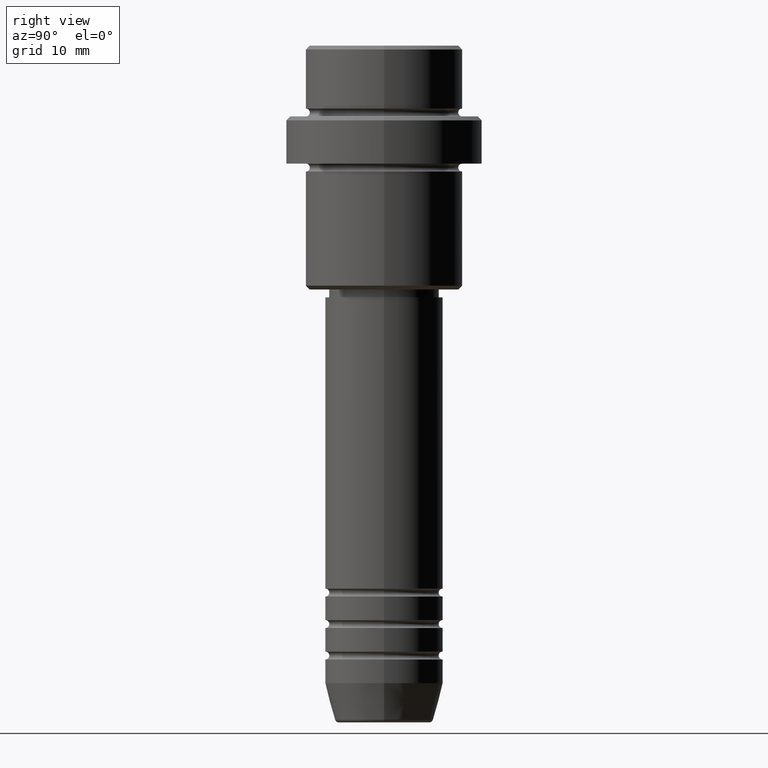
[diagram: clean part render]
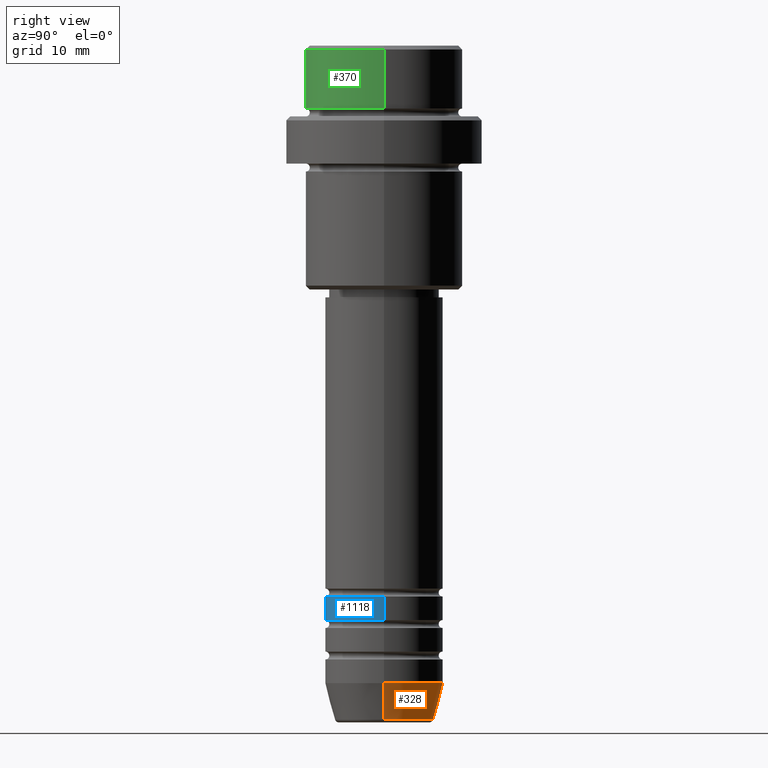
[diagram: same view with three faces highlighted in distinct colors, each labeled with its STEP entity id]
A machine part, right view with three faces highlighted in distinct colors.
Their STEP definitions:

[orange] entity #328 — the highlighted conical surface has half-angle 15 deg.
#17 = FACE_OUTER_BOUND ( 'NONE', #359, .T. ) ;
#29 = DIRECTION ( 'NONE',  ( 1.000000000000000000, 0.000000000000000000, 0.000000000000000000 ) ) ;
#90 = CIRCLE ( 'NONE', #1261, 7.500000000000000000 ) ;
#121 = VERTEX_POINT ( 'NONE', #997 ) ;
#144 = DIRECTION ( 'NONE',  ( -0.000000000000000000, -0.000000000000000000, 1.000000000000000000 ) ) ;
#169 = EDGE_CURVE ( 'NONE', #358, #606, #1356, .T. ) ;
#255 = DIRECTION ( 'NONE',  ( -0.000000000000000000, -0.000000000000000000, 1.000000000000000000 ) ) ;
#298 = CARTESIAN_POINT ( 'NONE',  ( 6.259553456999438659, 0.000000000000000000, -85.62940952255125637 ) ) ;
#313 = VECTOR ( 'NONE', #702, 1000.000000000000000 ) ;
#328 = ADVANCED_FACE ( 'NONE', ( #17 ), #1257, .T. ) ;
#329 = CARTESIAN_POINT ( 'NONE',  ( -7.500000000000000000, 9.184850993605147944E-16, -81.00000000000000000 ) ) ;
#334 = EDGE_CURVE ( 'NONE', #121, #705, #483, .T. ) ;
#348 = DIRECTION ( 'NONE',  ( 1.000000000000000000, 0.000000000000000000, 0.000000000000000000 ) ) ;
#358 = VERTEX_POINT ( 'NONE', #298 ) ;
#359 = EDGE_LOOP ( 'NONE', ( #775, #1226, #440, #851 ) ) ;
#430 = AXIS2_PLACEMENT_3D ( 'NONE', #911, #255, #29 ) ;
#440 = ORIENTED_EDGE ( 'NONE', *, *, #833, .F. ) ;
#483 = LINE ( 'NONE', #725, #313 ) ;
#543 = CIRCLE ( 'NONE', #430, 6.259553456999438659 ) ;
#597 = CARTESIAN_POINT ( 'NONE',  ( 7.500000000000000000, 0.000000000000000000, -81.00000000000000000 ) ) ;
#606 = VERTEX_POINT ( 'NONE', #1061 ) ;
#633 = AXIS2_PLACEMENT_3D ( 'NONE', #1332, #144, #348 ) ;
#691 = DIRECTION ( 'NONE',  ( 1.000000000000000000, 0.000000000000000000, 0.000000000000000000 ) ) ;
#702 = DIRECTION ( 'NONE',  ( -0.2588190451025213501, 3.169619151431772337E-17, 0.9659258262890680902 ) ) ;
#705 = VERTEX_POINT ( 'NONE', #329 ) ;
#725 = CARTESIAN_POINT ( 'NONE',  ( -7.500000000000000000, 9.184850993605147944E-16, -81.00000000000000000 ) ) ;
#735 = VECTOR ( 'NONE', #1144, 1000.000000000000000 ) ;
#775 = ORIENTED_EDGE ( 'NONE', *, *, #935, .T. ) ;
#833 = EDGE_CURVE ( 'NONE', #606, #705, #90, .T. ) ;
#851 = ORIENTED_EDGE ( 'NONE', *, *, #169, .F. ) ;
#911 = CARTESIAN_POINT ( 'NONE',  ( 0.000000000000000000, 0.000000000000000000, -85.62940952255125637 ) ) ;
#935 = EDGE_CURVE ( 'NONE', #358, #121, #543, .T. ) ;
#997 = CARTESIAN_POINT ( 'NONE',  ( -6.259553456999438659, 8.425296549405629486E-16, -85.62940952255125637 ) ) ;
#1061 = CARTESIAN_POINT ( 'NONE',  ( 7.500000000000000000, 0.000000000000000000, -81.00000000000000000 ) ) ;
#1144 = DIRECTION ( 'NONE',  ( 0.2588190451025213501, 0.000000000000000000, 0.9659258262890680902 ) ) ;
#1226 = ORIENTED_EDGE ( 'NONE', *, *, #334, .T. ) ;
#1234 = DIRECTION ( 'NONE',  ( -0.000000000000000000, -0.000000000000000000, 1.000000000000000000 ) ) ;
#1257 = CONICAL_SURFACE ( 'NONE', #633, 7.500000000000000000, 0.2617993877991500740 ) ;
#1261 = AXIS2_PLACEMENT_3D ( 'NONE', #1413, #1234, #691 ) ;
#1332 = CARTESIAN_POINT ( 'NONE',  ( 0.000000000000000000, 0.000000000000000000, -81.00000000000000000 ) ) ;
#1356 = LINE ( 'NONE', #597, #735 ) ;
#1413 = CARTESIAN_POINT ( 'NONE',  ( 0.000000000000000000, 0.000000000000000000, -81.00000000000000000 ) ) ;

[blue] entity #1118 — the highlighted cylindrical surface (partial cylindrical patch) has radius 7.5 mm, axis along (-0, -0, 1).
#19 = CARTESIAN_POINT ( 'NONE',  ( 7.500000000000000000, 0.000000000000000000, -69.99999999999990052 ) ) ;
#96 = VERTEX_POINT ( 'NONE', #573 ) ;
#206 = CIRCLE ( 'NONE', #1374, 7.500000000000000000 ) ;
#211 = DIRECTION ( 'NONE',  ( -0.000000000000000000, -0.000000000000000000, 1.000000000000000000 ) ) ;
#267 = DIRECTION ( 'NONE',  ( 1.000000000000000000, 0.000000000000000000, 0.000000000000000000 ) ) ;
#278 = CARTESIAN_POINT ( 'NONE',  ( -7.500000000000000000, 9.184850993605147944E-16, -69.99999999999990052 ) ) ;
#291 = VECTOR ( 'NONE', #211, 1000.000000000000000 ) ;
#381 = AXIS2_PLACEMENT_3D ( 'NONE', #1377, #711, #267 ) ;
#408 = EDGE_LOOP ( 'NONE', ( #747, #802, #901, #1212 ) ) ;
#423 = CARTESIAN_POINT ( 'NONE',  ( 0.000000000000000000, 0.000000000000000000, 0.000000000000000000 ) ) ;
#478 = CARTESIAN_POINT ( 'NONE',  ( -7.500000000000000000, 9.184850993605147944E-16, -72.99999999999990052 ) ) ;
#559 = DIRECTION ( 'NONE',  ( -0.000000000000000000, -0.000000000000000000, 1.000000000000000000 ) ) ;
#573 = CARTESIAN_POINT ( 'NONE',  ( 7.500000000000000000, 0.000000000000000000, -72.99999999999990052 ) ) ;
#604 = DIRECTION ( 'NONE',  ( -0.000000000000000000, -0.000000000000000000, 1.000000000000000000 ) ) ;
#690 = AXIS2_PLACEMENT_3D ( 'NONE', #423, #559, #1003 ) ;
#711 = DIRECTION ( 'NONE',  ( -0.000000000000000000, -0.000000000000000000, 1.000000000000000000 ) ) ;
#738 = VECTOR ( 'NONE', #1087, 1000.000000000000000 ) ;
#747 = ORIENTED_EDGE ( 'NONE', *, *, #824, .F. ) ;
#753 = FACE_OUTER_BOUND ( 'NONE', #408, .T. ) ;
#795 = CARTESIAN_POINT ( 'NONE',  ( -7.500000000000000000, 9.184850993605147944E-16, 0.000000000000000000 ) ) ;
#800 = EDGE_CURVE ( 'NONE', #96, #866, #994, .T. ) ;
#802 = ORIENTED_EDGE ( 'NONE', *, *, #992, .T. ) ;
#824 = EDGE_CURVE ( 'NONE', #1265, #995, #1309, .T. ) ;
#866 = VERTEX_POINT ( 'NONE', #19 ) ;
#868 = CYLINDRICAL_SURFACE ( 'NONE', #690, 7.500000000000000000 ) ;
#901 = ORIENTED_EDGE ( 'NONE', *, *, #800, .T. ) ;
#992 = EDGE_CURVE ( 'NONE', #1265, #96, #1220, .T. ) ;
#994 = LINE ( 'NONE', #1315, #291 ) ;
#995 = VERTEX_POINT ( 'NONE', #278 ) ;
#1003 = DIRECTION ( 'NONE',  ( 1.000000000000000000, 0.000000000000000000, 0.000000000000000000 ) ) ;
#1074 = EDGE_CURVE ( 'NONE', #995, #866, #206, .T. ) ;
#1087 = DIRECTION ( 'NONE',  ( -0.000000000000000000, -0.000000000000000000, 1.000000000000000000 ) ) ;
#1118 = ADVANCED_FACE ( 'NONE', ( #753 ), #868, .T. ) ;
#1174 = CARTESIAN_POINT ( 'NONE',  ( 0.000000000000000000, 0.000000000000000000, -69.99999999999990052 ) ) ;
#1212 = ORIENTED_EDGE ( 'NONE', *, *, #1074, .F. ) ;
#1220 = CIRCLE ( 'NONE', #381, 7.500000000000000000 ) ;
#1265 = VERTEX_POINT ( 'NONE', #478 ) ;
#1274 = DIRECTION ( 'NONE',  ( 1.000000000000000000, 0.000000000000000000, 0.000000000000000000 ) ) ;
#1309 = LINE ( 'NONE', #795, #738 ) ;
#1315 = CARTESIAN_POINT ( 'NONE',  ( 7.500000000000000000, 0.000000000000000000, 0.000000000000000000 ) ) ;
#1374 = AXIS2_PLACEMENT_3D ( 'NONE', #1174, #604, #1274 ) ;
#1377 = CARTESIAN_POINT ( 'NONE',  ( 0.000000000000000000, 0.000000000000000000, -72.99999999999990052 ) ) ;

[green] entity #370 — the highlighted cylindrical surface (partial cylindrical patch) has radius 10 mm, axis along (-0, -0, 1).
#12 = CARTESIAN_POINT ( 'NONE',  ( 0.000000000000000000, 0.000000000000000000, -7.999999999999998224 ) ) ;
#43 = LINE ( 'NONE', #349, #566 ) ;
#52 = DIRECTION ( 'NONE',  ( 1.000000000000000000, 0.000000000000000000, 0.000000000000000000 ) ) ;
#81 = CARTESIAN_POINT ( 'NONE',  ( -9.999999999999998224, 1.224646799147353059E-15, -7.999999999999998224 ) ) ;
#128 = ORIENTED_EDGE ( 'NONE', *, *, #819, .T. ) ;
#157 = VERTEX_POINT ( 'NONE', #922 ) ;
#175 = EDGE_CURVE ( 'NONE', #1065, #157, #1361, .T. ) ;
#179 = AXIS2_PLACEMENT_3D ( 'NONE', #12, #442, #344 ) ;
#182 = CIRCLE ( 'NONE', #793, 9.999999999999998224 ) ;
#216 = DIRECTION ( 'NONE',  ( -0.000000000000000000, -0.000000000000000000, 1.000000000000000000 ) ) ;
#223 = VERTEX_POINT ( 'NONE', #957 ) ;
#275 = VERTEX_POINT ( 'NONE', #1090 ) ;
#344 = DIRECTION ( 'NONE',  ( 1.000000000000000000, 0.000000000000000000, 0.000000000000000000 ) ) ;
#349 = CARTESIAN_POINT ( 'NONE',  ( 9.999999999999998224, 0.000000000000000000, 0.000000000000000000 ) ) ;
#370 = ADVANCED_FACE ( 'NONE', ( #749 ), #1076, .T. ) ;
#373 = DIRECTION ( 'NONE',  ( -0.000000000000000000, -0.000000000000000000, 1.000000000000000000 ) ) ;
#442 = DIRECTION ( 'NONE',  ( -0.000000000000000000, -0.000000000000000000, 1.000000000000000000 ) ) ;
#552 = CARTESIAN_POINT ( 'NONE',  ( 0.000000000000000000, 0.000000000000000000, 0.000000000000000000 ) ) ;
#566 = VECTOR ( 'NONE', #801, 1000.000000000000000 ) ;
#749 = FACE_OUTER_BOUND ( 'NONE', #838, .T. ) ;
#763 = AXIS2_PLACEMENT_3D ( 'NONE', #552, #216, #52 ) ;
#793 = AXIS2_PLACEMENT_3D ( 'NONE', #1120, #873, #974 ) ;
#801 = DIRECTION ( 'NONE',  ( -0.000000000000000000, -0.000000000000000000, 1.000000000000000000 ) ) ;
#819 = EDGE_CURVE ( 'NONE', #1065, #275, #1172, .T. ) ;
#838 = EDGE_LOOP ( 'NONE', ( #889, #128, #1191, #1092 ) ) ;
#873 = DIRECTION ( 'NONE',  ( 0.000000000000000000, 0.000000000000000000, -1.000000000000000000 ) ) ;
#889 = ORIENTED_EDGE ( 'NONE', *, *, #175, .F. ) ;
#922 = CARTESIAN_POINT ( 'NONE',  ( -9.999999999999998224, 1.224646799147353059E-15, -0.5000000000000108802 ) ) ;
#957 = CARTESIAN_POINT ( 'NONE',  ( 9.999999999999998224, 0.000000000000000000, -0.5000000000000108802 ) ) ;
#959 = EDGE_CURVE ( 'NONE', #275, #223, #43, .T. ) ;
#974 = DIRECTION ( 'NONE',  ( 1.000000000000000000, 0.000000000000000000, 0.000000000000000000 ) ) ;
#1043 = CARTESIAN_POINT ( 'NONE',  ( -9.999999999999998224, 1.224646799147353059E-15, 0.000000000000000000 ) ) ;
#1065 = VERTEX_POINT ( 'NONE', #81 ) ;
#1076 = CYLINDRICAL_SURFACE ( 'NONE', #763, 9.999999999999998224 ) ;
#1090 = CARTESIAN_POINT ( 'NONE',  ( 9.999999999999998224, 0.000000000000000000, -7.999999999999998224 ) ) ;
#1092 = ORIENTED_EDGE ( 'NONE', *, *, #1193, .T. ) ;
#1120 = CARTESIAN_POINT ( 'NONE',  ( 0.000000000000000000, 0.000000000000000000, -0.5000000000000108802 ) ) ;
#1172 = CIRCLE ( 'NONE', #179, 9.999999999999998224 ) ;
#1191 = ORIENTED_EDGE ( 'NONE', *, *, #959, .T. ) ;
#1193 = EDGE_CURVE ( 'NONE', #223, #157, #182, .T. ) ;
#1361 = LINE ( 'NONE', #1043, #1394 ) ;
#1394 = VECTOR ( 'NONE', #373, 1000.000000000000000 ) ;